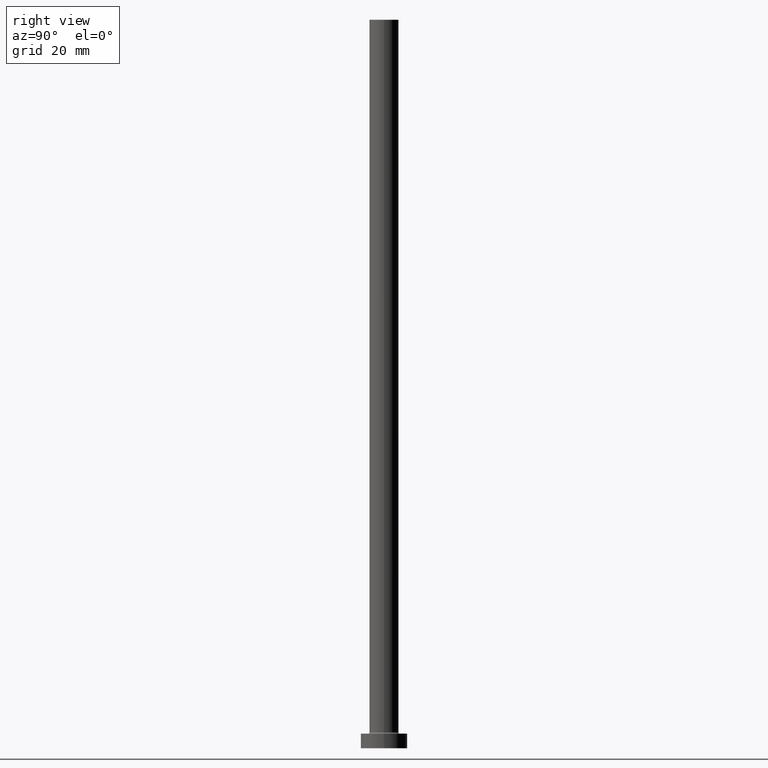
[diagram: clean part render]
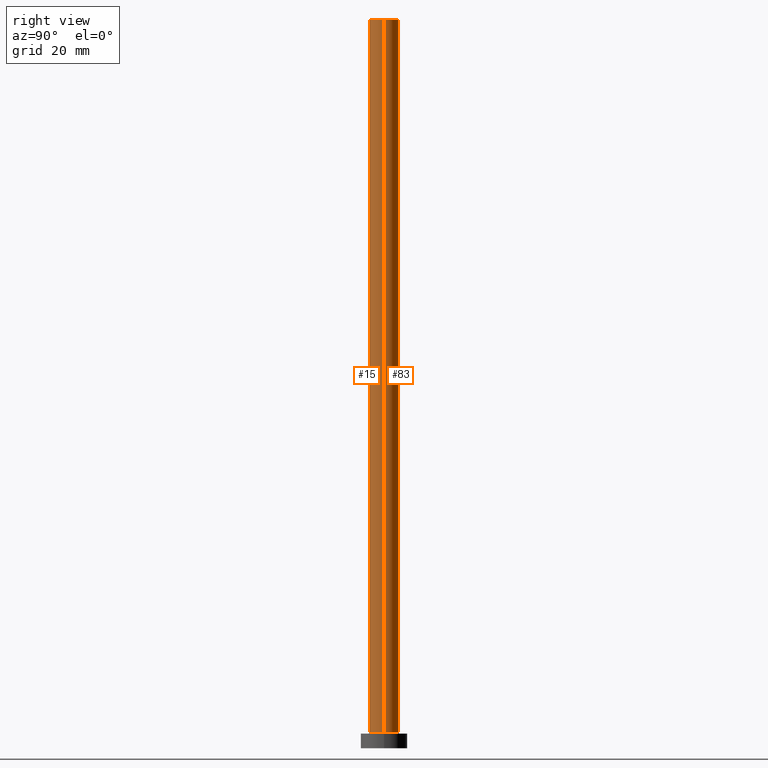
[diagram: same view with one multi-face feature highlighted, each face labeled with its STEP entity id]
A machine part, right view. The highlighted faces form ONE feature: a constant-radius fillet chain: 2 tangent blend faces with common blend radius 5 mm. The faces share edges in the B-rep.
Their STEP definitions:
[1] entity #83 (Cylinder):
#9 = AXIS2_PLACEMENT_3D ( 'NONE', #418, #234, #50 ) ;
#36 = LINE ( 'NONE', #397, #81 ) ;
#40 = VERTEX_POINT ( 'NONE', #437 ) ;
#45 = FACE_OUTER_BOUND ( 'NONE', #439, .T. ) ;
#50 = DIRECTION ( 'NONE',  ( 1.000000000000000000, 0.000000000000000000, 0.000000000000000000 ) ) ;
#56 = VERTEX_POINT ( 'NONE', #303 ) ;
#71 = AXIS2_PLACEMENT_3D ( 'NONE', #298, #120, #220 ) ;
#80 = CIRCLE ( 'NONE', #9, 5.000000000000000000 ) ;
#81 = VECTOR ( 'NONE', #110, 1000.000000000000000 ) ;
#83 = ADVANCED_FACE ( 'NONE', ( #45 ), #368, .T. ) ;
#110 = DIRECTION ( 'NONE',  ( -0.000000000000000000, -0.000000000000000000, -1.000000000000000000 ) ) ;
#111 = VERTEX_POINT ( 'NONE', #301 ) ;
#120 = DIRECTION ( 'NONE',  ( -0.000000000000000000, -0.000000000000000000, -1.000000000000000000 ) ) ;
#121 = DIRECTION ( 'NONE',  ( 1.000000000000000000, 0.000000000000000000, 0.000000000000000000 ) ) ;
#124 = VECTOR ( 'NONE', #436, 1000.000000000000000 ) ;
#126 = CIRCLE ( 'NONE', #361, 5.000000000000000000 ) ;
#135 = ORIENTED_EDGE ( 'NONE', *, *, #333, .F. ) ;
#152 = EDGE_CURVE ( 'NONE', #178, #40, #80, .T. ) ;
#157 = CARTESIAN_POINT ( 'NONE',  ( -5.000000000000000000, 0.000000000000000000, 250.0000000000000000 ) ) ;
#158 = ORIENTED_EDGE ( 'NONE', *, *, #152, .T. ) ;
#178 = VERTEX_POINT ( 'NONE', #390 ) ;
#189 = CARTESIAN_POINT ( 'NONE',  ( 0.000000000000000000, 0.000000000000000000, 250.0000000000000000 ) ) ;
#217 = LINE ( 'NONE', #157, #124 ) ;
#220 = DIRECTION ( 'NONE',  ( -1.000000000000000000, 0.000000000000000000, 0.000000000000000000 ) ) ;
#234 = DIRECTION ( 'NONE',  ( 0.000000000000000000, 0.000000000000000000, 1.000000000000000000 ) ) ;
#278 = EDGE_CURVE ( 'NONE', #111, #40, #217, .T. ) ;
#298 = CARTESIAN_POINT ( 'NONE',  ( 0.000000000000000000, 0.000000000000000000, 250.0000000000000000 ) ) ;
#301 = CARTESIAN_POINT ( 'NONE',  ( -5.000000000000000000, 0.000000000000000000, 250.0000000000000000 ) ) ;
#303 = CARTESIAN_POINT ( 'NONE',  ( 5.000000000000000000, 6.123233995736766282E-16, 250.0000000000000000 ) ) ;
#304 = EDGE_CURVE ( 'NONE', #56, #178, #36, .T. ) ;
#333 = EDGE_CURVE ( 'NONE', #56, #111, #126, .T. ) ;
#361 = AXIS2_PLACEMENT_3D ( 'NONE', #189, #401, #121 ) ;
#368 = CYLINDRICAL_SURFACE ( 'NONE', #71, 5.000000000000000000 ) ;
#372 = ORIENTED_EDGE ( 'NONE', *, *, #304, .T. ) ;
#389 = ORIENTED_EDGE ( 'NONE', *, *, #278, .F. ) ;
#390 = CARTESIAN_POINT ( 'NONE',  ( 5.000000000000000000, 6.123233995736766282E-16, 5.500000000000005329 ) ) ;
#397 = CARTESIAN_POINT ( 'NONE',  ( 5.000000000000000000, 6.123233995736766282E-16, 250.0000000000000000 ) ) ;
#401 = DIRECTION ( 'NONE',  ( 0.000000000000000000, 0.000000000000000000, 1.000000000000000000 ) ) ;
#418 = CARTESIAN_POINT ( 'NONE',  ( 0.000000000000000000, 0.000000000000000000, 5.500000000000005329 ) ) ;
#436 = DIRECTION ( 'NONE',  ( -0.000000000000000000, -0.000000000000000000, -1.000000000000000000 ) ) ;
#437 = CARTESIAN_POINT ( 'NONE',  ( -5.000000000000000000, 0.000000000000000000, 5.500000000000005329 ) ) ;
#439 = EDGE_LOOP ( 'NONE', ( #135, #372, #158, #389 ) ) ;
[2] entity #15 (Cylinder):
#15 = ADVANCED_FACE ( 'NONE', ( #43 ), #435, .T. ) ;
#36 = LINE ( 'NONE', #397, #81 ) ;
#40 = VERTEX_POINT ( 'NONE', #437 ) ;
#43 = FACE_OUTER_BOUND ( 'NONE', #410, .T. ) ;
#56 = VERTEX_POINT ( 'NONE', #303 ) ;
#73 = CIRCLE ( 'NONE', #319, 5.000000000000000000 ) ;
#77 = CARTESIAN_POINT ( 'NONE',  ( 0.000000000000000000, 0.000000000000000000, 250.0000000000000000 ) ) ;
#81 = VECTOR ( 'NONE', #110, 1000.000000000000000 ) ;
#85 = DIRECTION ( 'NONE',  ( -1.000000000000000000, 0.000000000000000000, 0.000000000000000000 ) ) ;
#110 = DIRECTION ( 'NONE',  ( -0.000000000000000000, -0.000000000000000000, -1.000000000000000000 ) ) ;
#111 = VERTEX_POINT ( 'NONE', #301 ) ;
#113 = DIRECTION ( 'NONE',  ( -0.000000000000000000, -0.000000000000000000, -1.000000000000000000 ) ) ;
#124 = VECTOR ( 'NONE', #436, 1000.000000000000000 ) ;
#133 = DIRECTION ( 'NONE',  ( 1.000000000000000000, 0.000000000000000000, 0.000000000000000000 ) ) ;
#157 = CARTESIAN_POINT ( 'NONE',  ( -5.000000000000000000, 0.000000000000000000, 250.0000000000000000 ) ) ;
#164 = EDGE_CURVE ( 'NONE', #40, #178, #73, .T. ) ;
#178 = VERTEX_POINT ( 'NONE', #390 ) ;
#190 = ORIENTED_EDGE ( 'NONE', *, *, #278, .T. ) ;
#194 = CARTESIAN_POINT ( 'NONE',  ( 0.000000000000000000, 0.000000000000000000, 250.0000000000000000 ) ) ;
#217 = LINE ( 'NONE', #157, #124 ) ;
#252 = ORIENTED_EDGE ( 'NONE', *, *, #304, .F. ) ;
#278 = EDGE_CURVE ( 'NONE', #111, #40, #217, .T. ) ;
#283 = EDGE_CURVE ( 'NONE', #111, #56, #383, .T. ) ;
#300 = DIRECTION ( 'NONE',  ( 0.000000000000000000, 0.000000000000000000, 1.000000000000000000 ) ) ;
#301 = CARTESIAN_POINT ( 'NONE',  ( -5.000000000000000000, 0.000000000000000000, 250.0000000000000000 ) ) ;
#303 = CARTESIAN_POINT ( 'NONE',  ( 5.000000000000000000, 6.123233995736766282E-16, 250.0000000000000000 ) ) ;
#304 = EDGE_CURVE ( 'NONE', #56, #178, #36, .T. ) ;
#311 = ORIENTED_EDGE ( 'NONE', *, *, #283, .F. ) ;
#313 = CARTESIAN_POINT ( 'NONE',  ( 0.000000000000000000, 0.000000000000000000, 5.500000000000005329 ) ) ;
#319 = AXIS2_PLACEMENT_3D ( 'NONE', #313, #455, #133 ) ;
#383 = CIRCLE ( 'NONE', #386, 5.000000000000000000 ) ;
#386 = AXIS2_PLACEMENT_3D ( 'NONE', #77, #300, #441 ) ;
#390 = CARTESIAN_POINT ( 'NONE',  ( 5.000000000000000000, 6.123233995736766282E-16, 5.500000000000005329 ) ) ;
#397 = CARTESIAN_POINT ( 'NONE',  ( 5.000000000000000000, 6.123233995736766282E-16, 250.0000000000000000 ) ) ;
#410 = EDGE_LOOP ( 'NONE', ( #252, #311, #190, #415 ) ) ;
#415 = ORIENTED_EDGE ( 'NONE', *, *, #164, .T. ) ;
#435 = CYLINDRICAL_SURFACE ( 'NONE', #446, 5.000000000000000000 ) ;
#436 = DIRECTION ( 'NONE',  ( -0.000000000000000000, -0.000000000000000000, -1.000000000000000000 ) ) ;
#437 = CARTESIAN_POINT ( 'NONE',  ( -5.000000000000000000, 0.000000000000000000, 5.500000000000005329 ) ) ;
#441 = DIRECTION ( 'NONE',  ( 1.000000000000000000, 0.000000000000000000, 0.000000000000000000 ) ) ;
#446 = AXIS2_PLACEMENT_3D ( 'NONE', #194, #113, #85 ) ;
#455 = DIRECTION ( 'NONE',  ( 0.000000000000000000, 0.000000000000000000, 1.000000000000000000 ) ) ;